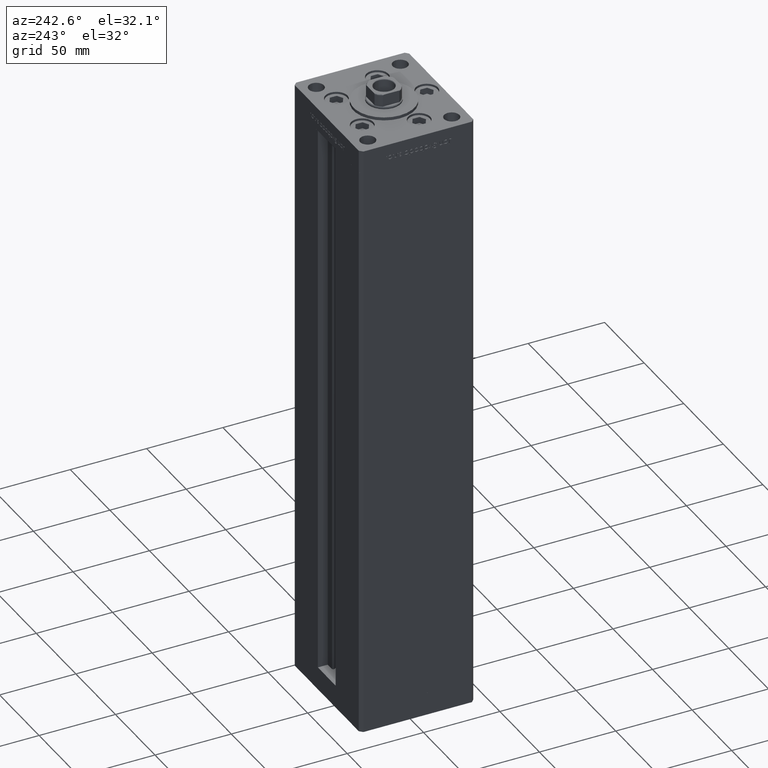
[diagram: clean part render]
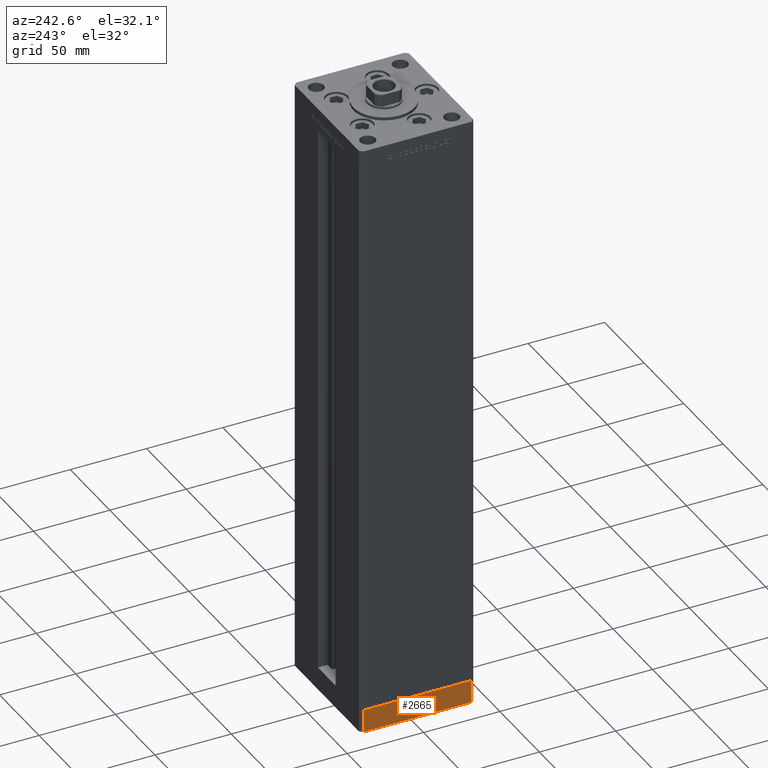
[diagram: same view with one face highlighted and labeled with its STEP entity id]
A machine part, auxiliary view. The second image highlights one B-rep face of the part: STEP entity #2665.
In plain terms, the highlighted planar face has unit normal (-1, 0, 0).
Its self-contained STEP definition (entity closure, byte-faithful):
#643 = VECTOR ( 'NONE', #20605, 1000.000000000000000 ) ;
#2665 = ADVANCED_FACE ( 'NONE', ( #51194 ), #22195, .T. ) ;
#3090 = CARTESIAN_POINT ( 'NONE',  ( 42.50000000000000711, -35.50000000000000000, 0.000000000000000000 ) ) ;
#6066 = CARTESIAN_POINT ( 'NONE',  ( 42.49999999999992895, 35.50000000000000000, 0.000000000000000000 ) ) ;
#7791 = ORIENTED_EDGE ( 'NONE', *, *, #47371, .T. ) ;
#7941 = DIRECTION ( 'NONE',  ( -1.172770800660376741E-15, 1.000000000000000000, 0.000000000000000000 ) ) ;
#9225 = VERTEX_POINT ( 'NONE', #39832 ) ;
#10233 = DIRECTION ( 'NONE',  ( -1.172770800660376741E-15, 1.000000000000000000, 0.000000000000000000 ) ) ;
#10321 = DIRECTION ( 'NONE',  ( 1.000000000000000000, 1.172770800660376741E-15, -0.000000000000000000 ) ) ;
#10447 = EDGE_CURVE ( 'NONE', #15817, #9225, #29046, .T. ) ;
#10653 = CARTESIAN_POINT ( 'NONE',  ( 42.49999999999992895, 35.50000000000000000, -15.00000000000000000 ) ) ;
#10829 = VECTOR ( 'NONE', #7941, 1000.000000000000000 ) ;
#13023 = EDGE_CURVE ( 'NONE', #9225, #25842, #51100, .T. ) ;
#13484 = CARTESIAN_POINT ( 'NONE',  ( 42.50000000000000711, -35.50000000000000000, -15.00000000000000000 ) ) ;
#15817 = VERTEX_POINT ( 'NONE', #35398 ) ;
#16455 = ORIENTED_EDGE ( 'NONE', *, *, #10447, .F. ) ;
#20605 = DIRECTION ( 'NONE',  ( 0.000000000000000000, 0.000000000000000000, 1.000000000000000000 ) ) ;
#21860 = EDGE_LOOP ( 'NONE', ( #22634, #16455, #38392, #7791 ) ) ;
#22195 = PLANE ( 'NONE',  #42648 ) ;
#22634 = ORIENTED_EDGE ( 'NONE', *, *, #13023, .F. ) ;
#25842 = VERTEX_POINT ( 'NONE', #6066 ) ;
#26650 = DIRECTION ( 'NONE',  ( -1.172770800660376741E-15, 1.000000000000000000, 0.000000000000000000 ) ) ;
#27052 = DIRECTION ( 'NONE',  ( 0.000000000000000000, 0.000000000000000000, 1.000000000000000000 ) ) ;
#27612 = VECTOR ( 'NONE', #27052, 1000.000000000000000 ) ;
#29046 = LINE ( 'NONE', #13484, #643 ) ;
#31151 = CARTESIAN_POINT ( 'NONE',  ( 42.50000000000000711, -35.50000000000000000, -15.00000000000000000 ) ) ;
#35398 = CARTESIAN_POINT ( 'NONE',  ( 42.50000000000000711, -35.50000000000000000, -15.00000000000000000 ) ) ;
#36101 = VECTOR ( 'NONE', #10233, 1000.000000000000000 ) ;
#38392 = ORIENTED_EDGE ( 'NONE', *, *, #50163, .T. ) ;
#39832 = CARTESIAN_POINT ( 'NONE',  ( 42.50000000000000711, -35.50000000000000000, 0.000000000000000000 ) ) ;
#42629 = CARTESIAN_POINT ( 'NONE',  ( 42.49999999999992895, 35.50000000000000000, -15.00000000000000000 ) ) ;
#42648 = AXIS2_PLACEMENT_3D ( 'NONE', #31151, #10321, #26650 ) ;
#44847 = VERTEX_POINT ( 'NONE', #10653 ) ;
#47371 = EDGE_CURVE ( 'NONE', #44847, #25842, #50555, .T. ) ;
#47778 = CARTESIAN_POINT ( 'NONE',  ( 42.50000000000000711, -35.50000000000000000, -15.00000000000000000 ) ) ;
#50163 = EDGE_CURVE ( 'NONE', #15817, #44847, #51733, .T. ) ;
#50555 = LINE ( 'NONE', #42629, #27612 ) ;
#51100 = LINE ( 'NONE', #3090, #36101 ) ;
#51194 = FACE_OUTER_BOUND ( 'NONE', #21860, .T. ) ;
#51733 = LINE ( 'NONE', #47778, #10829 ) ;